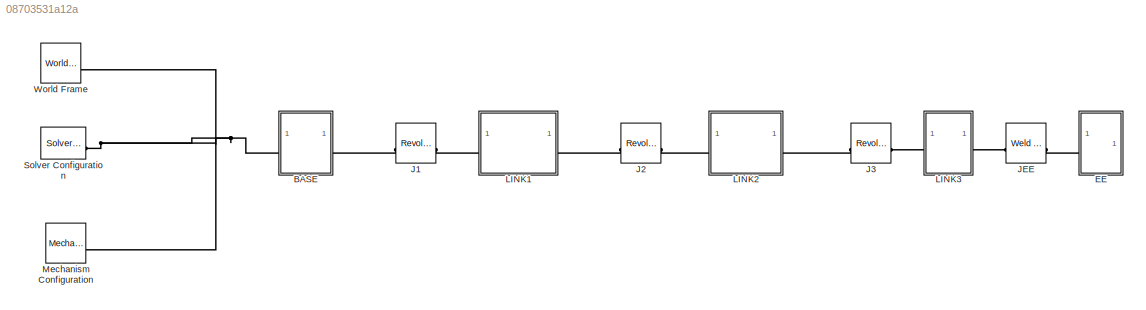
MODEL slx_08703531a12a
KIND model
CONFIG AbsTol = auto
CONFIG EnableMultiTasking = off
CONFIG FixedStep = auto
CONFIG MaxStep = auto
CONFIG MinStep = auto
CONFIG RelTol = 1e-3
CONFIG SampleTimeConstraint = Unconstrained
CONFIG SolverName = VariableStepAuto
CONFIG StartTime = 0.0
CONFIG StopTime = 10.0
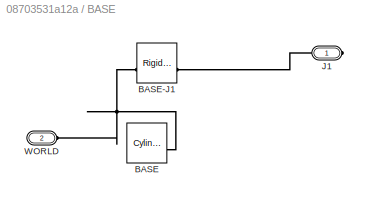
BLOCK [SubSystem] BASE
BLOCK [Reference] BASE/BASE  REF=sm_lib/Body Elements/Cylindrical Solid
  SourceBlock = sm_lib/Body Elements/Cylindrical Solid
  SourceType = Cylindrical Solid
BLOCK [Reference] BASE/BASE-J1  REF=sm_lib/Frames and
Transforms/Rigid
Transform
  SourceBlock = sm_lib/Frames and\nTransforms/Rigid\nTransform
  SourceType = Rigid\nTransform
BLOCK [PMIOPort] BASE/J1
  Side = Right
BLOCK [PMIOPort] BASE/WORLD
  Port = 2
  Side = Left
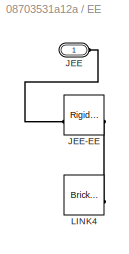
BLOCK [SubSystem] EE
BLOCK [PMIOPort] EE/JEE
  Side = Left
BLOCK [Reference] EE/JEE-EE  REF=sm_lib/Frames and
Transforms/Rigid
Transform
  SourceBlock = sm_lib/Frames and\nTransforms/Rigid\nTransform
  SourceType = Rigid\nTransform
BLOCK [Reference] EE/LINK4  REF=sm_lib/Body Elements/Brick Solid
  SourceBlock = sm_lib/Body Elements/Brick Solid
  SourceType = Brick Solid
BLOCK [Reference] J1  REF=sm_lib/Joints/Revolute Joint
  SourceBlock = sm_lib/Joints/Revolute Joint
  SourceType = Revolute Joint
BLOCK [Reference] J2  REF=sm_lib/Joints/Revolute Joint
  SourceBlock = sm_lib/Joints/Revolute Joint
  SourceType = Revolute Joint
BLOCK [Reference] J3  REF=sm_lib/Joints/Revolute Joint
  SourceBlock = sm_lib/Joints/Revolute Joint
  SourceType = Revolute Joint
BLOCK [Reference] JEE  REF=sm_lib/Joints/Weld Joint
  SourceBlock = sm_lib/Joints/Weld Joint
  SourceType = Weld Joint
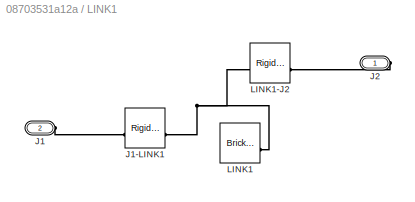
BLOCK [SubSystem] LINK1
BLOCK [PMIOPort] LINK1/J1
  Port = 2
  Side = Left
BLOCK [Reference] LINK1/J1-LINK1  REF=sm_lib/Frames and
Transforms/Rigid
Transform
  SourceBlock = sm_lib/Frames and\nTransforms/Rigid\nTransform
  SourceType = Rigid\nTransform
BLOCK [PMIOPort] LINK1/J2
  Side = Right
BLOCK [Reference] LINK1/LINK1  REF=sm_lib/Body Elements/Brick Solid
  SourceBlock = sm_lib/Body Elements/Brick Solid
  SourceType = Brick Solid
BLOCK [Reference] LINK1/LINK1-J2  REF=sm_lib/Frames and
Transforms/Rigid
Transform
  NameLocation = top
  SourceBlock = sm_lib/Frames and\nTransforms/Rigid\nTransform
  SourceType = Rigid\nTransform
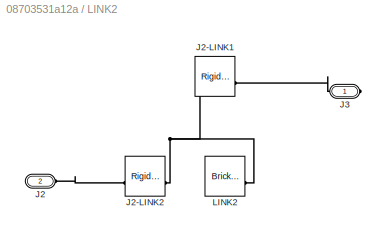
BLOCK [SubSystem] LINK2
BLOCK [PMIOPort] LINK2/J2
  Port = 2
  Side = Left
BLOCK [Reference] LINK2/J2-LINK1  REF=sm_lib/Frames and
Transforms/Rigid
Transform
  SourceBlock = sm_lib/Frames and\nTransforms/Rigid\nTransform
  SourceType = Rigid\nTransform
BLOCK [Reference] LINK2/J2-LINK2  REF=sm_lib/Frames and
Transforms/Rigid
Transform
  SourceBlock = sm_lib/Frames and\nTransforms/Rigid\nTransform
  SourceType = Rigid\nTransform
BLOCK [PMIOPort] LINK2/J3
  Side = Right
BLOCK [Reference] LINK2/LINK2  REF=sm_lib/Body Elements/Brick Solid
  SourceBlock = sm_lib/Body Elements/Brick Solid
  SourceType = Brick Solid
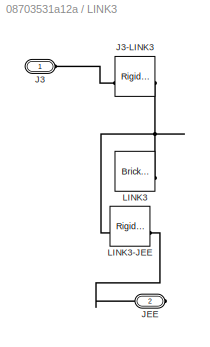
BLOCK [SubSystem] LINK3
BLOCK [PMIOPort] LINK3/J3
  Side = Left
BLOCK [Reference] LINK3/J3-LINK3  REF=sm_lib/Frames and
Transforms/Rigid
Transform
  SourceBlock = sm_lib/Frames and\nTransforms/Rigid\nTransform
  SourceType = Rigid\nTransform
BLOCK [PMIOPort] LINK3/JEE
  Port = 2
  Side = Right
BLOCK [Reference] LINK3/LINK3  REF=sm_lib/Body Elements/Brick Solid
  SourceBlock = sm_lib/Body Elements/Brick Solid
  SourceType = Brick Solid
BLOCK [Reference] LINK3/LINK3-JEE  REF=sm_lib/Frames and
Transforms/Rigid
Transform
  SourceBlock = sm_lib/Frames and\nTransforms/Rigid\nTransform
  SourceType = Rigid\nTransform
BLOCK [Reference] Mechanism Configuration  REF=sm_lib/Utilities/Mechanism
Configuration
  SourceBlock = sm_lib/Utilities/Mechanism\nConfiguration
  SourceType = Mechanism\nConfiguration
BLOCK [Reference] Solver Configuration  REF=nesl_utility/Solver
Configuration
  SourceBlock = nesl_utility/Solver\nConfiguration
  SourceType = Solver\nConfiguration
BLOCK [Reference] World Frame  REF=sm_lib/Frames and
Transforms/World Frame
  SourceBlock = sm_lib/Frames and\nTransforms/World Frame
  SourceType = World Frame
PNET net1: BASE/BASE-J1:LConn1 -- BASE/BASE:RConn1 -- BASE/WORLD:RConn1
PLINE BASE/BASE-J1:RConn1 -- BASE/J1:RConn1
PNET net2: BASE:LConn1 -- Mechanism Configuration:RConn1 -- Solver Configuration:RConn1 -- World Frame:RConn1
PLINE BASE:RConn1 -- J1:LConn1
PLINE EE/JEE-EE:LConn1 -- EE/JEE:RConn1
PLINE EE/JEE-EE:RConn1 -- EE/LINK4:RConn1
PLINE EE:LConn1 -- JEE:RConn1
PLINE J1:RConn1 -- LINK1:LConn1
PLINE J2:LConn1 -- LINK1:RConn1
PLINE J2:RConn1 -- LINK2:LConn1
PLINE J3:LConn1 -- LINK2:RConn1
PLINE J3:RConn1 -- LINK3:LConn1
PLINE JEE:LConn1 -- LINK3:RConn1
PLINE LINK1/J1-LINK1:LConn1 -- LINK1/J1:RConn1
PNET net3: LINK1/J1-LINK1:RConn1 -- LINK1/LINK1-J2:LConn1 -- LINK1/LINK1:RConn1
PLINE LINK1/J2:RConn1 -- LINK1/LINK1-J2:RConn1
PNET net4: LINK2/J2-LINK1:LConn1 -- LINK2/J2-LINK2:RConn1 -- LINK2/LINK2:RConn1
PLINE LINK2/J2-LINK1:RConn1 -- LINK2/J3:RConn1
PLINE LINK2/J2-LINK2:LConn1 -- LINK2/J2:RConn1
PLINE LINK3/J3-LINK3:LConn1 -- LINK3/J3:RConn1
PNET net5: LINK3/J3-LINK3:RConn1 -- LINK3/LINK3-JEE:LConn1 -- LINK3/LINK3:RConn1
PLINE LINK3/JEE:RConn1 -- LINK3/LINK3-JEE:RConn1
note: PNET lines group multi-terminal physical nets as a canonical sorted terminal list (undirected conserving connections); 2-terminal nets keep the pairwise PLINE form
